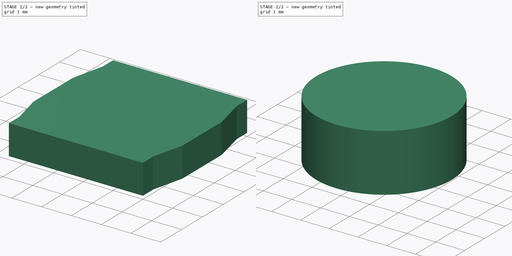
[diagram: build sequence overview — one tinted view per stage of 2, left to right]
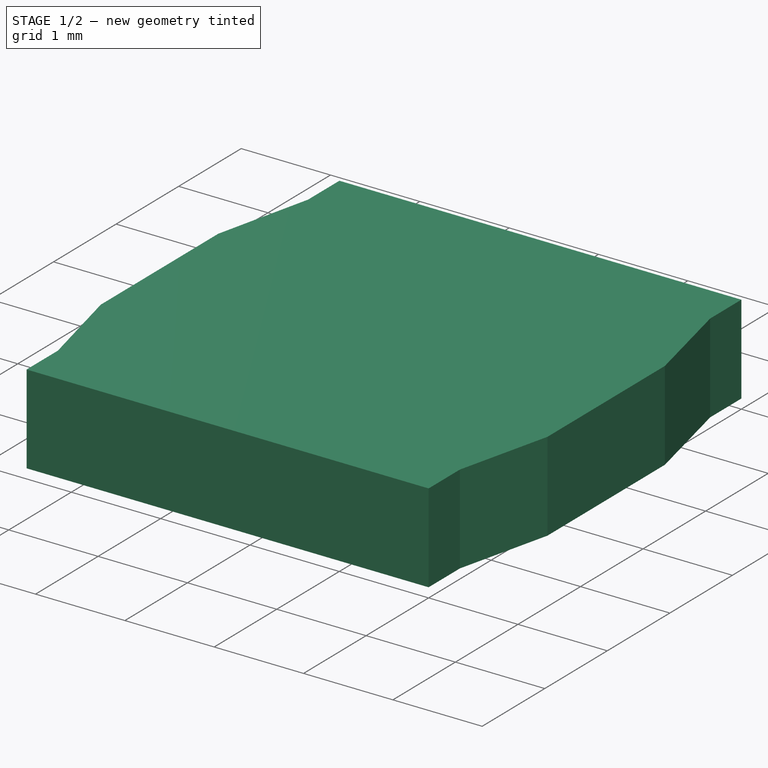
[diagram: stage 1 of 2 — iso view after this stage's code; geometry added in this stage tinted green]
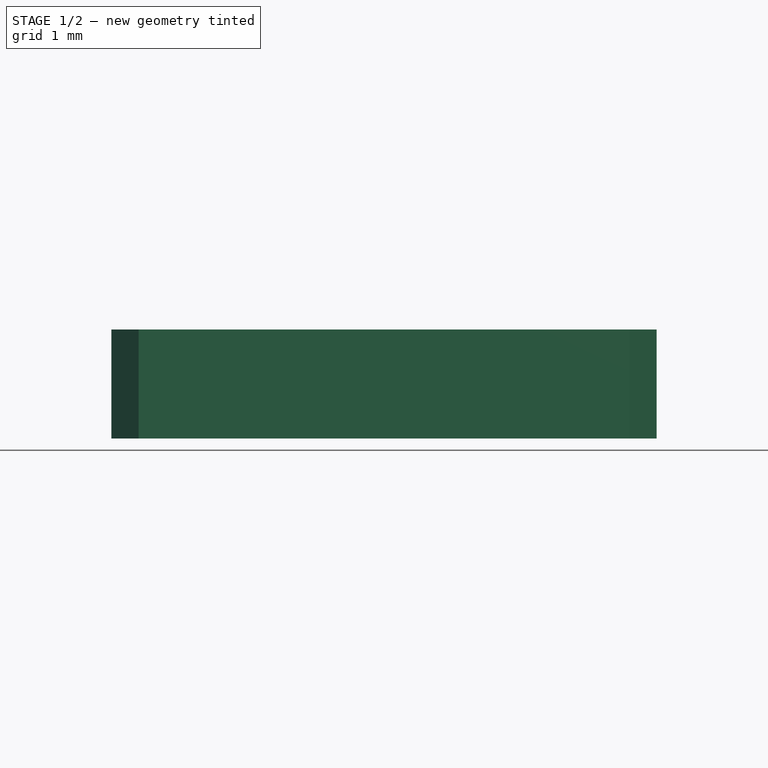
[diagram: stage 1 of 2 — front view after this stage's code; geometry added in this stage tinted green]
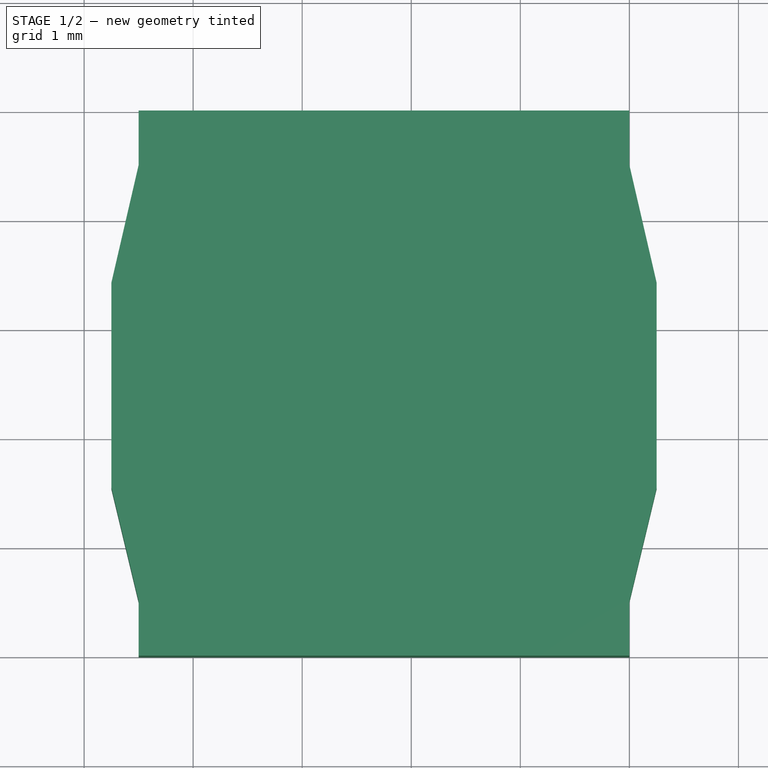
[diagram: stage 1 of 2 — top view after this stage's code; geometry added in this stage tinted green]
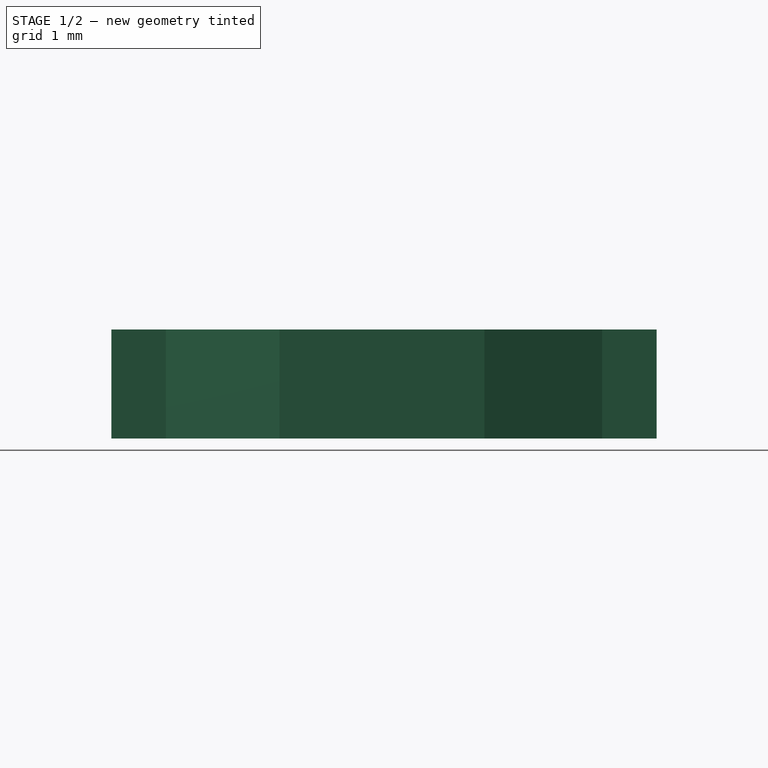
[diagram: stage 1 of 2 — right view after this stage's code; geometry added in this stage tinted green]
FCSTD DOCUMENT  (FreeCAD 0.20R24389 (Git))
Label: inductor
License: All rights reserved
LicenseURL: http://en.wikipedia.org/wiki/All_rights_reserved
objects: Sketcher::SketchObject×2, Part::Extrusion×2, App::Link×1, Part::Feature×1
note: 5 computed .brp shape members not serialized (recipe doc carries the construction recipe); baked Part::Feature solids carry a one-line shape summary decoded from their .brp

FEATURE [Sketcher::SketchObject] Sketch
  FullyConstrained = false
  sketch-geometry (12):
    g0: LineSegment StartX=0 StartY=0 StartZ=0 EndX=0 EndY=0.5 EndZ=0
    g1: LineSegment StartX=0 StartY=0.5 StartZ=0 EndX=0.25 EndY=1.54201 EndZ=0
    g2: LineSegment StartX=0.25 StartY=1.54201 StartZ=0 EndX=0.25 EndY=3.42022 EndZ=0
    g3: LineSegment StartX=0.25 StartY=3.42022 StartZ=0 EndX=0 EndY=4.5 EndZ=0
    g4: LineSegment StartX=0 StartY=4.5 StartZ=0 EndX=0 EndY=5 EndZ=0
    g5: LineSegment StartX=0 StartY=5 StartZ=0 EndX=-4.5 EndY=5 EndZ=0
    g6: LineSegment StartX=-4.5 StartY=5 StartZ=0 EndX=-4.5 EndY=4.5 EndZ=0
    g7: LineSegment StartX=-4.5 StartY=4.5 StartZ=0 EndX=-4.75 EndY=3.42022 EndZ=0
    g8: LineSegment StartX=-4.75 StartY=3.42022 StartZ=0 EndX=-4.75 EndY=1.54201 EndZ=0
    g9: LineSegment StartX=-4.75 StartY=1.54201 StartZ=0 EndX=-4.5 EndY=0.5 EndZ=0
    g10: LineSegment StartX=-4.5 StartY=0.5 StartZ=0 EndX=-4.5 EndY=0 EndZ=0
    g11: LineSegment StartX=-4.5 StartY=0 StartZ=0 EndX=0 EndY=0 EndZ=0
  constraints (33):
    c: Coincident(g0,g-1)
    c: PointOnObject(g0,g-2)
    c: Coincident(g0,g1)
    c: Coincident(g1,g2)
    c: Vertical(g2)
    c: Coincident(g2,g3)
    c: PointOnObject(g3,g-2)
    c: Coincident(g3,g4)
    c: PointOnObject(g4,g-2)
    c: Coincident(g4,g5)
    c: Horizontal(g5)
    c: Coincident(g5,g6)
    c: Vertical(g6)
    c: Coincident(g6,g7)
    c: Coincident(g7,g8)
    c: Vertical(g8)
    c: Coincident(g8,g9)
    c: Coincident(g9,g10)
    c: PointOnObject(g10,g-1)
    c: Vertical(g10)
    c: Coincident(g10,g11)
    c: Coincident(g11,g0)
    c: Equal(g5,g11)
    c: Equal(g10,g0)
    c: Equal(g8,g2)
    c: Equal(g6,g4)
    c: Equal(g7,g3)
    c: Equal(g9,g1)
    c: DistanceY(g0,g4) = 5
    c: DistanceX(g9,g0) = 4.5
    c: DistanceX(g7,g2) = 5
    c: Equal(g0,g4)
    c: DistanceY(g3,g4) = 0.5
FEATURE [Part::Extrusion] Extrude
  Base = -> Sketch
  Dir = (0,0,1)
  DirMode = 2
  FaceMakerClass = Part::FaceMakerBullseye
  LengthFwd = 1
  LengthRev = 0
  Solid = true
  Symmetric = false
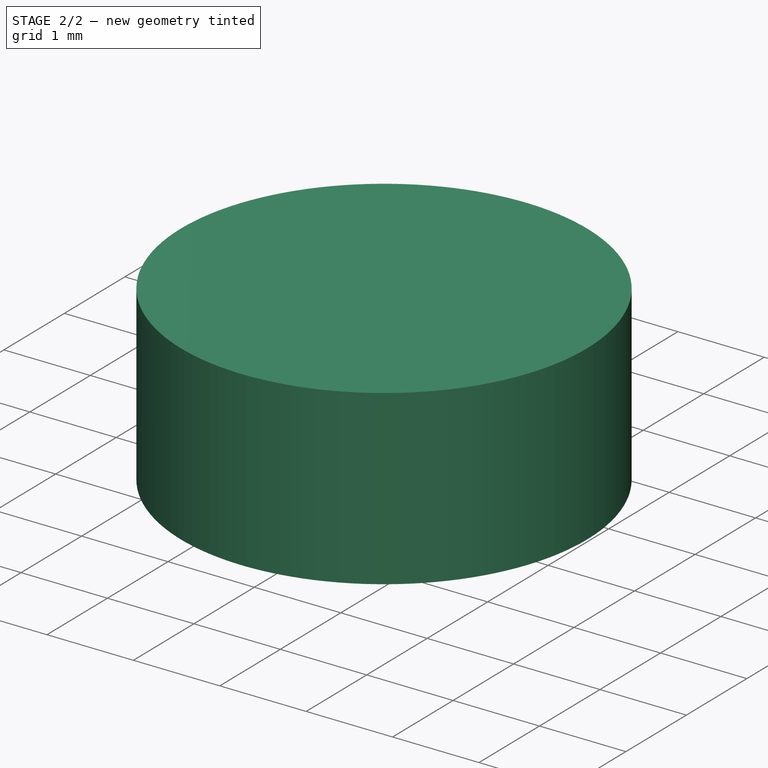
[diagram: stage 2 of 2 — iso view after this stage's code; geometry added in this stage tinted green]
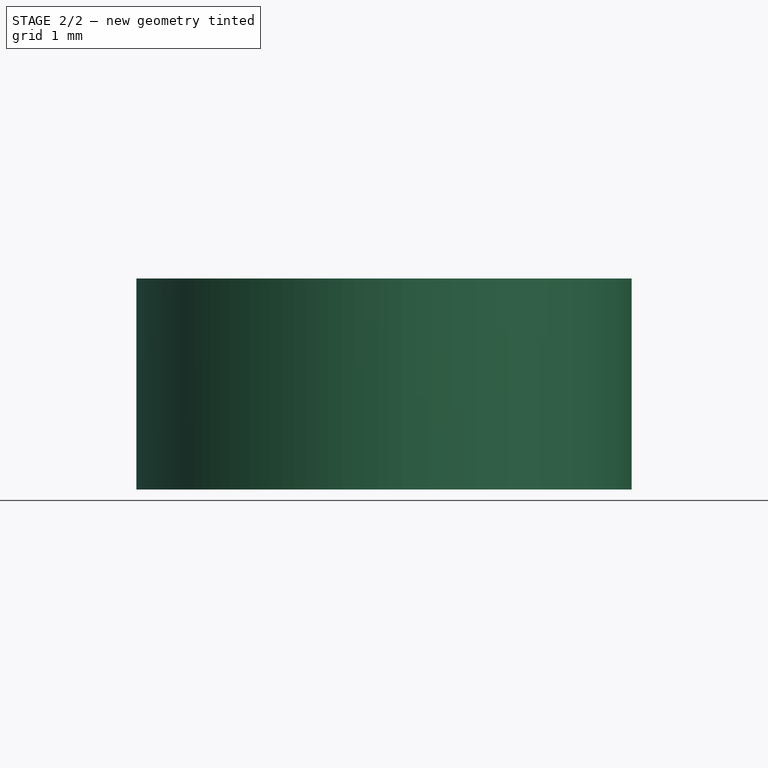
[diagram: stage 2 of 2 — front view after this stage's code; geometry added in this stage tinted green]
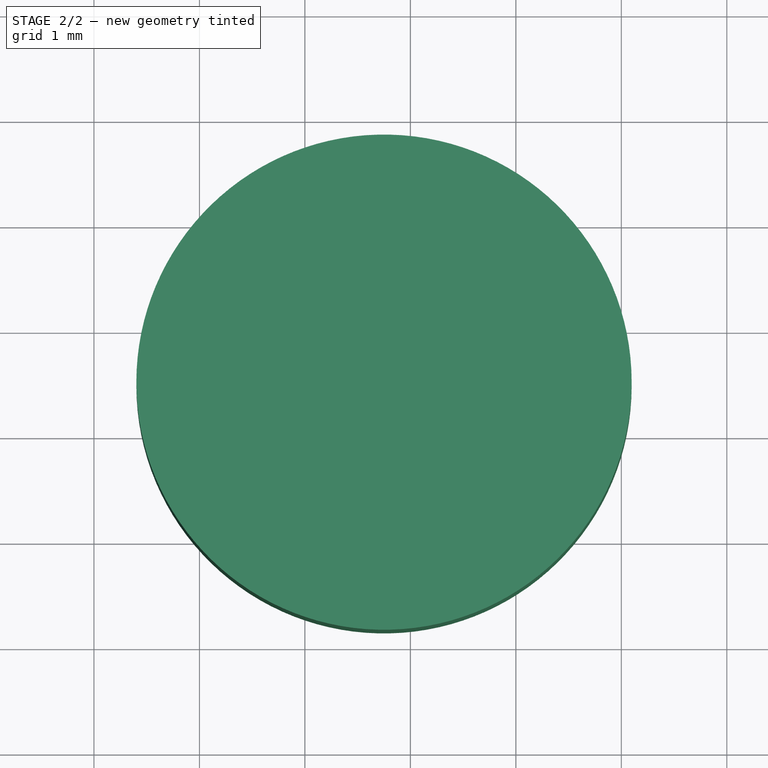
[diagram: stage 2 of 2 — top view after this stage's code; geometry added in this stage tinted green]
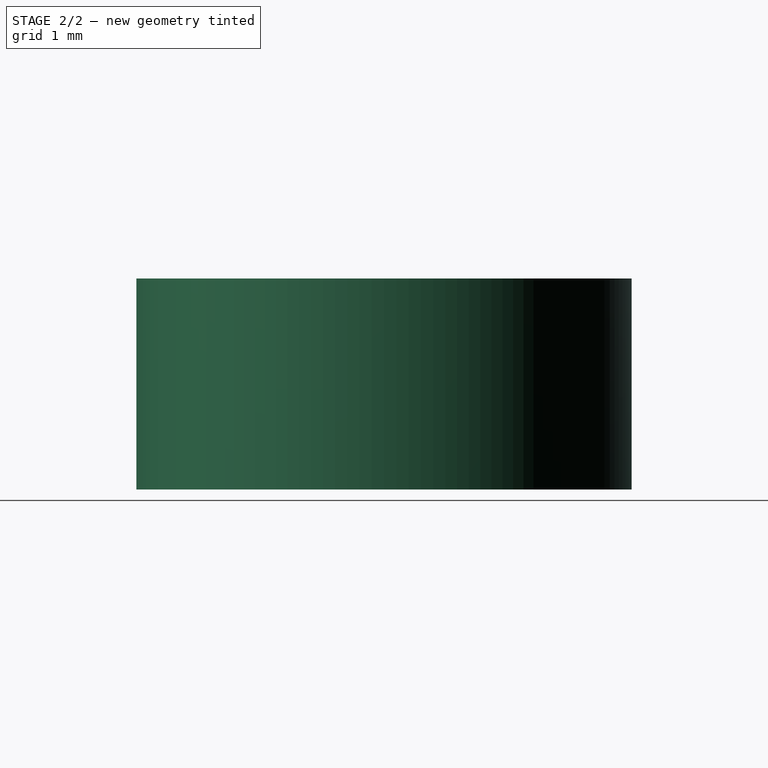
[diagram: stage 2 of 2 — right view after this stage's code; geometry added in this stage tinted green]
FEATURE [App::Link] Link  label="Extrude001"
  LinkPlacement = pos=(0,-2.98023e-07,3) rot=(0,0,1;0rad)
  LinkedObject = -> Extrude
  Placement = pos=(0,-2.98023e-07,3) rot=(0,0,1;0rad)
FEATURE [Sketcher::SketchObject] Sketch001
  ExternalGeometry = -> [Extrude]
  FullyConstrained = false
  MapMode = 5
  Placement = pos=(0,0,1) rot=(0,0,1;0rad)
  Support = -> [Extrude]
  sketch-geometry (1):
    g0: Circle CenterX=-2.25 CenterY=2.5 CenterZ=0 NormalX=0 NormalY=0 NormalZ=1 AngleXU=0 Radius=2.34795
  constraints (1):
    c: Symmetric(g-3,g-4,g0)
FEATURE [Part::Extrusion] Extrude001  label="Extrude002"
  Base = -> Sketch001
  Dir = (0,0,1)
  DirMode = 2
  FaceMakerClass = Part::FaceMakerBullseye
  LengthFwd = 2
  LengthRev = 0
  Solid = true
  Symmetric = false
FEATURE [Part::Feature] Shape  label="inductor"
  shape: bbox 5 x 5 x 4 mm, 31 faces, 3 solids (baked)
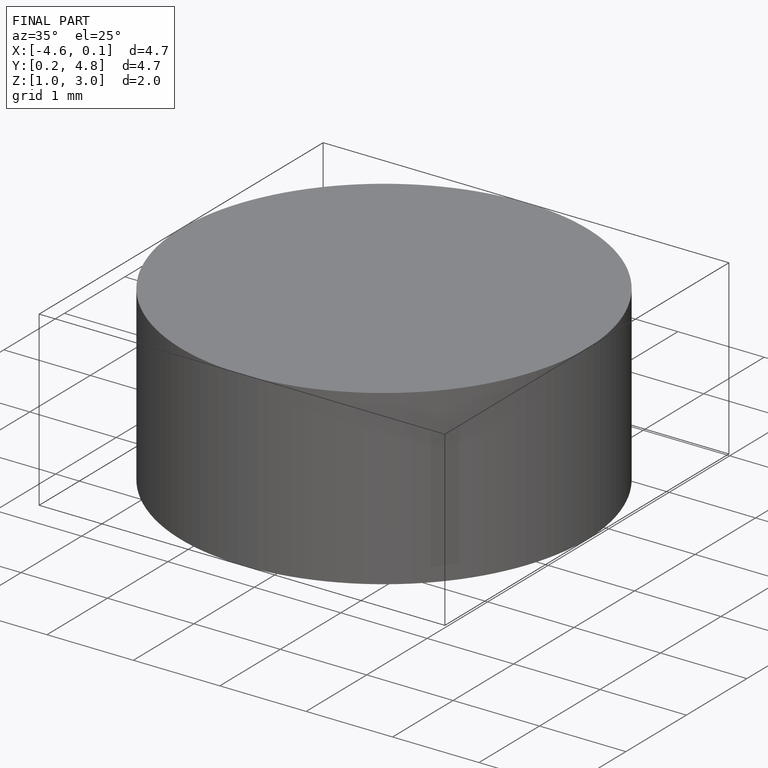
[diagram: finished part — iso view with bounding-box wireframe]
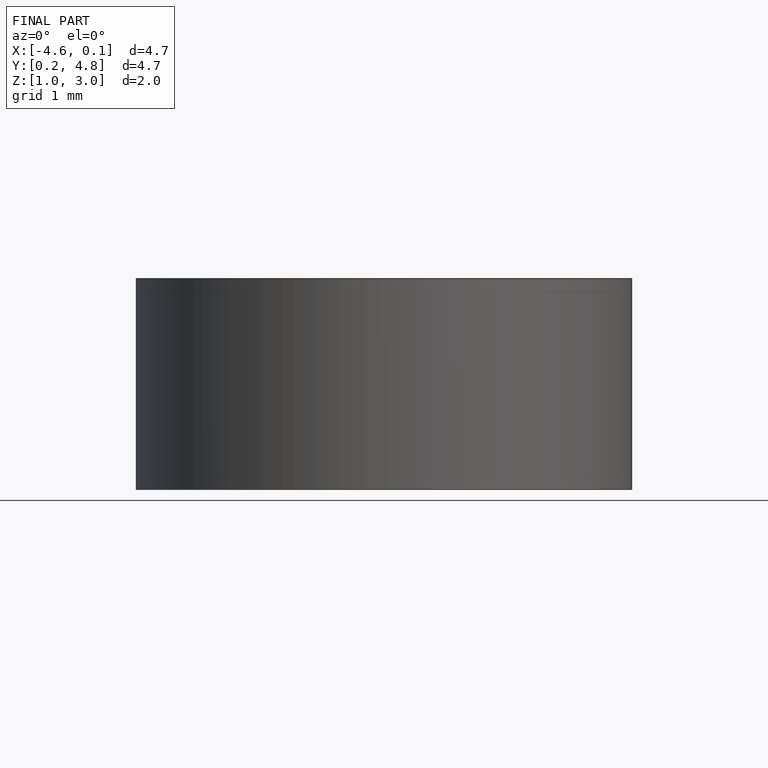
[diagram: finished part — front view with bounding-box wireframe]
